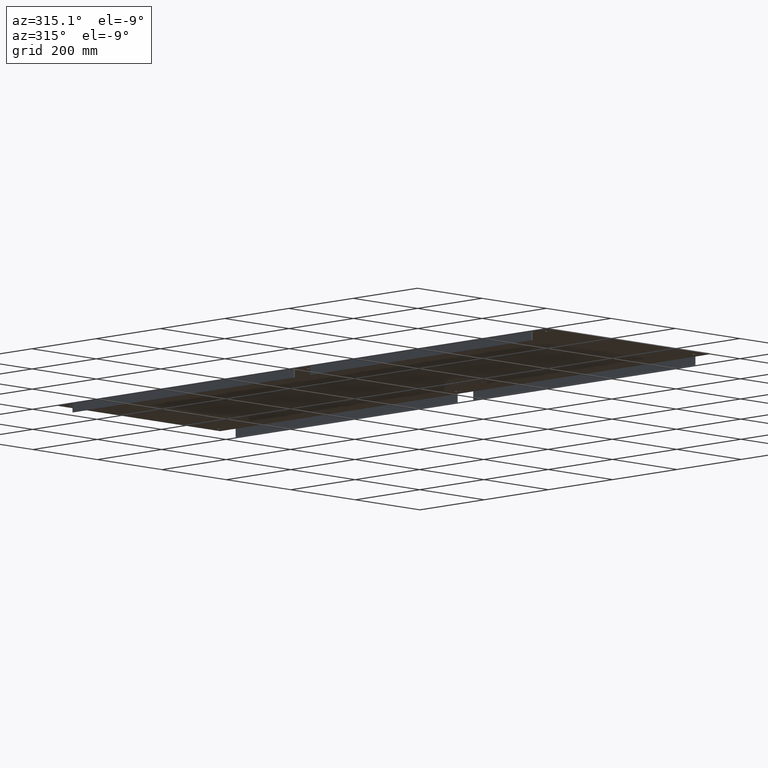
[diagram: clean part render]
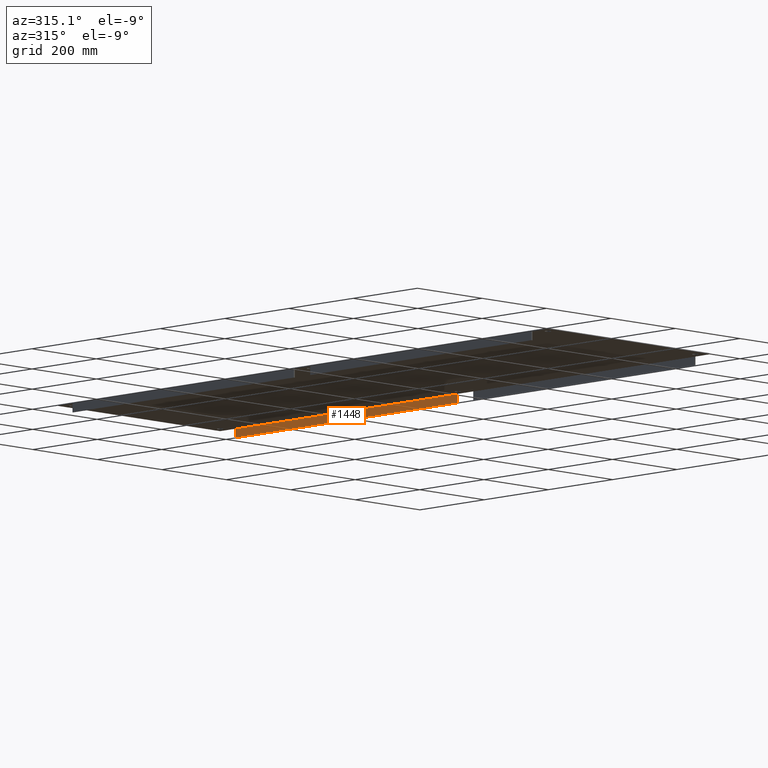
[diagram: same view with one face highlighted and labeled with its STEP entity id]
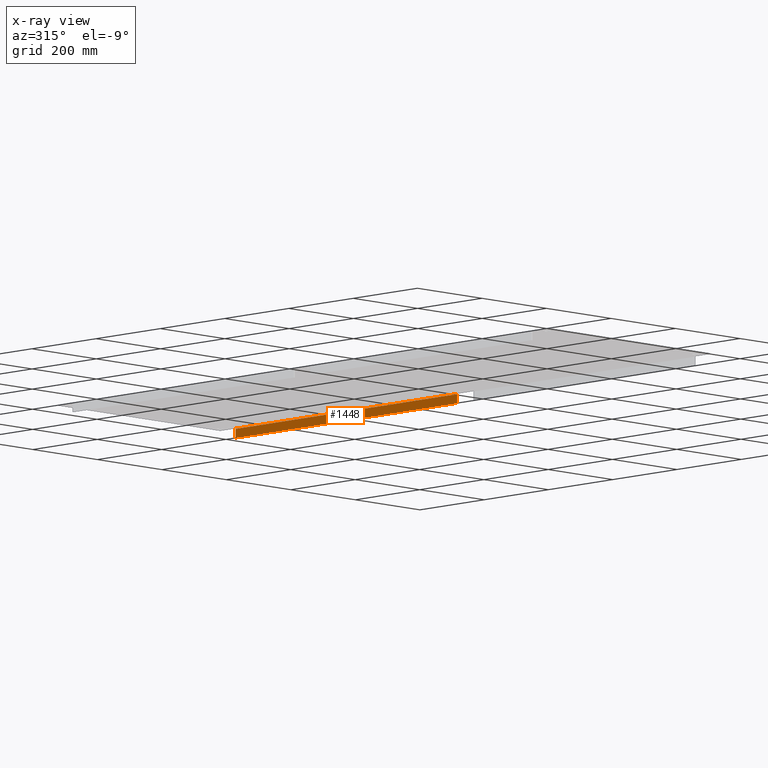
[diagram: x-ray of the same camera — body ghosted, the highlighted face saturated]
A machine part, auxiliary view. The second image highlights one B-rep face of the part: STEP entity #1448.
The next image is the same camera in x-ray: the body ghosted, the highlighted face saturated — about 0% of this face is hidden behind the body in this view.
In plain terms, the highlighted planar face has unit normal (-1, 0, 0).
Its self-contained STEP definition (entity closure, byte-faithful):
#707=CARTESIAN_POINT('',(19.906249999999975,31.000000000000018,-0.015000000000028));
#708=VERTEX_POINT('',#707);
#716=CARTESIAN_POINT('',(19.906249999999996,31.000000000000007,-0.781249999999907));
#717=VERTEX_POINT('',#716);
#718=CARTESIAN_POINT('',(19.906249999999996,31.000000000000018,-0.781249999999907));
#719=DIRECTION('',(0.0,0.0,1.0));
#720=VECTOR('',#719,0.766249999999879);
#721=LINE('',#718,#720);
#722=EDGE_CURVE('',#717,#708,#721,.T.);
#1407=CARTESIAN_POINT('',(19.906249999999989,58.125000000000007,-0.78125));
#1408=VERTEX_POINT('',#1407);
#1409=CARTESIAN_POINT('',(19.906249999999989,58.125000000000007,-0.78125));
#1410=DIRECTION('',(0.0,-1.0,0.0));
#1411=VECTOR('',#1410,27.125000000000004);
#1412=LINE('',#1409,#1411);
#1413=EDGE_CURVE('',#1408,#717,#1412,.T.);
#1425=CARTESIAN_POINT('',(19.906249999999989,58.125000000000007,-0.78125));
#1426=DIRECTION('',(-1.0,0.0,0.0));
#1427=DIRECTION('',(0.0,0.0,1.0));
#1428=AXIS2_PLACEMENT_3D('',#1425,#1426,#1427);
#1429=PLANE('',#1428);
#1430=ORIENTED_EDGE('',*,*,#722,.T.);
#1431=CARTESIAN_POINT('',(19.906249999999979,58.125000000000007,-0.015000000000017));
#1432=VERTEX_POINT('',#1431);
#1433=CARTESIAN_POINT('',(19.906249999999975,58.125000000000007,-0.015000000000022));
#1434=DIRECTION('',(0.0,-1.0,0.0));
#1435=VECTOR('',#1434,27.124999999999989);
#1436=LINE('',#1433,#1435);
#1437=EDGE_CURVE('',#1432,#708,#1436,.T.);
#1438=ORIENTED_EDGE('',*,*,#1437,.F.);
#1439=CARTESIAN_POINT('',(19.906249999999989,58.125000000000007,-0.015));
#1440=DIRECTION('',(0.0,0.0,-1.0));
#1441=VECTOR('',#1440,0.76625);
#1442=LINE('',#1439,#1441);
#1443=EDGE_CURVE('',#1432,#1408,#1442,.T.);
#1444=ORIENTED_EDGE('',*,*,#1443,.T.);
#1445=ORIENTED_EDGE('',*,*,#1413,.T.);
#1446=EDGE_LOOP('',(#1430,#1438,#1444,#1445));
#1447=FACE_OUTER_BOUND('',#1446,.T.);
#1448=ADVANCED_FACE('',(#1447),#1429,.T.);